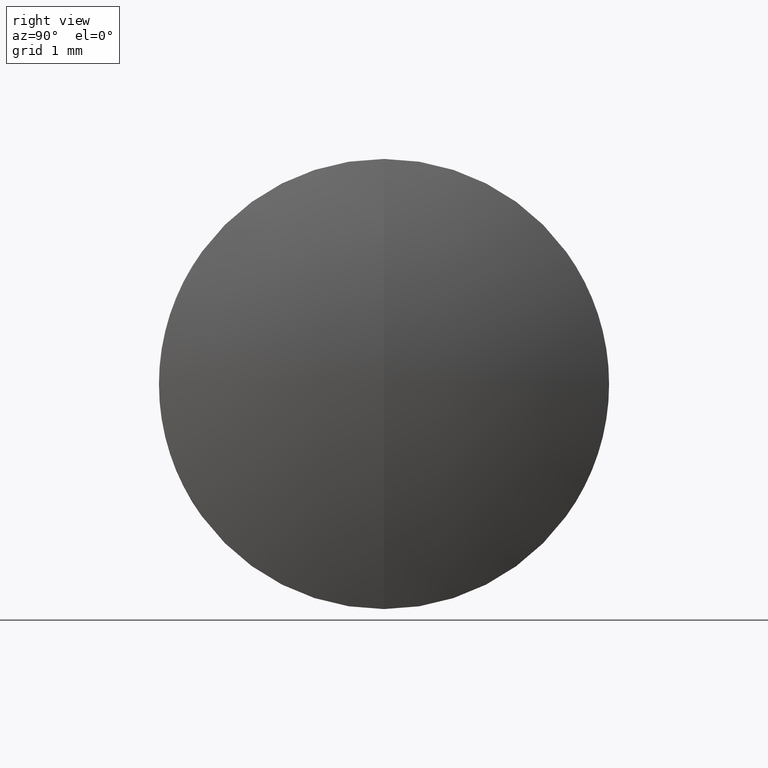
[diagram: clean part render]
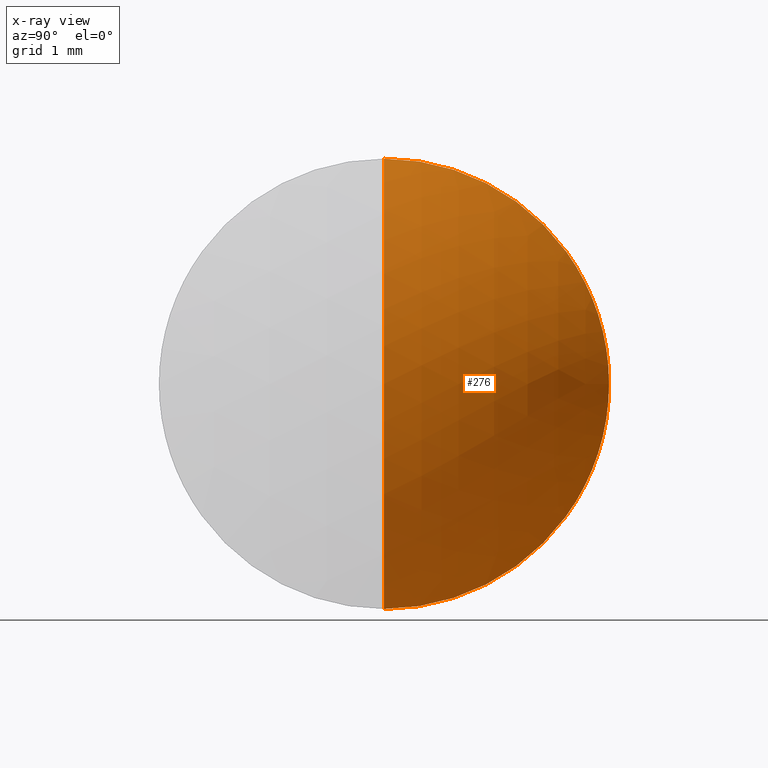
[diagram: x-ray — body ghosted, one internal face saturated and labeled with its STEP entity id]
A machine part, right view, then the same camera in x-ray: the body is ghosted and one INTERNAL B-rep face — a face not visible from any outside direction — is saturated and labeled: STEP entity #276.
In plain terms, the highlighted spherical surface has radius 3.64 mm.
Its self-contained STEP definition (entity closure, byte-faithful):
#8 = AXIS2_PLACEMENT_3D ( 'NONE', #43, #70, #74 ) ;
#10 = CARTESIAN_POINT ( 'NONE',  ( 1.831048013437507300, 0.0000000000000000000, 3.000000000000000000 ) ) ;
#15 = CARTESIAN_POINT ( 'NONE',  ( 3.409592217161487000, 0.0000000000000000000, 3.719824962113585100E-016 ) ) ;
#22 = EDGE_LOOP ( 'NONE', ( #196, #72, #284 ) ) ;
#23 = CARTESIAN_POINT ( 'NONE',  ( 1.831048013437507300, 0.0000000000000000000, 0.0000000000000000000 ) ) ;
#24 = CIRCLE ( 'NONE', #32, 3.000000000000000000 ) ;
#32 = AXIS2_PLACEMENT_3D ( 'NONE', #23, #50, #120 ) ;
#43 = CARTESIAN_POINT ( 'NONE',  ( -0.2304077828385122900, 0.0000000000000000000, 1.490967787665402800E-016 ) ) ;
#49 = AXIS2_PLACEMENT_3D ( 'NONE', #328, #292, #205 ) ;
#50 = DIRECTION ( 'NONE',  ( -1.000000000000000000, -0.0000000000000000000, -0.0000000000000000000 ) ) ;
#65 = AXIS2_PLACEMENT_3D ( 'NONE', #259, #325, #234 ) ;
#70 = DIRECTION ( 'NONE',  ( 0.0000000000000000000, -1.000000000000000000, 0.0000000000000000000 ) ) ;
#72 = ORIENTED_EDGE ( 'NONE', *, *, #223, .T. ) ;
#74 = DIRECTION ( 'NONE',  ( 0.0000000000000000000, 0.0000000000000000000, -1.000000000000000000 ) ) ;
#111 = EDGE_CURVE ( 'NONE', #119, #213, #296, .T. ) ;
#119 = VERTEX_POINT ( 'NONE', #15 ) ;
#120 = DIRECTION ( 'NONE',  ( 0.0000000000000000000, 0.0000000000000000000, 1.000000000000000000 ) ) ;
#149 = EDGE_CURVE ( 'NONE', #213, #326, #24, .T. ) ;
#158 = FACE_OUTER_BOUND ( 'NONE', #22, .T. ) ;
#196 = ORIENTED_EDGE ( 'NONE', *, *, #111, .F. ) ;
#205 = DIRECTION ( 'NONE',  ( 0.0000000000000000000, -1.224646799147353000E-016, 1.000000000000000000 ) ) ;
#213 = VERTEX_POINT ( 'NONE', #10 ) ;
#223 = EDGE_CURVE ( 'NONE', #119, #326, #297, .T. ) ;
#234 = DIRECTION ( 'NONE',  ( 0.0000000000000000000, 0.0000000000000000000, 1.000000000000000000 ) ) ;
#259 = CARTESIAN_POINT ( 'NONE',  ( -0.2304077828385122900, 0.0000000000000000000, 1.490967787665402800E-016 ) ) ;
#273 = SPHERICAL_SURFACE ( 'NONE', #65, 3.639999999999999700 ) ;
#276 = ADVANCED_FACE ( 'NONE', ( #158 ), #273, .T. ) ;
#284 = ORIENTED_EDGE ( 'NONE', *, *, #149, .F. ) ;
#285 = CARTESIAN_POINT ( 'NONE',  ( 1.831048013437507300, 3.673940397442059900E-016, -3.000000000000000000 ) ) ;
#292 = DIRECTION ( 'NONE',  ( -0.0000000000000000000, 1.000000000000000000, 1.224646799147353200E-016 ) ) ;
#296 = CIRCLE ( 'NONE', #8, 3.639999999999999700 ) ;
#297 = CIRCLE ( 'NONE', #49, 3.639999999999999700 ) ;
#325 = DIRECTION ( 'NONE',  ( 0.0000000000000000000, 1.000000000000000000, 0.0000000000000000000 ) ) ;
#326 = VERTEX_POINT ( 'NONE', #285 ) ;
#328 = CARTESIAN_POINT ( 'NONE',  ( -0.2304077828385122900, 0.0000000000000000000, 1.490967787665402800E-016 ) ) ;